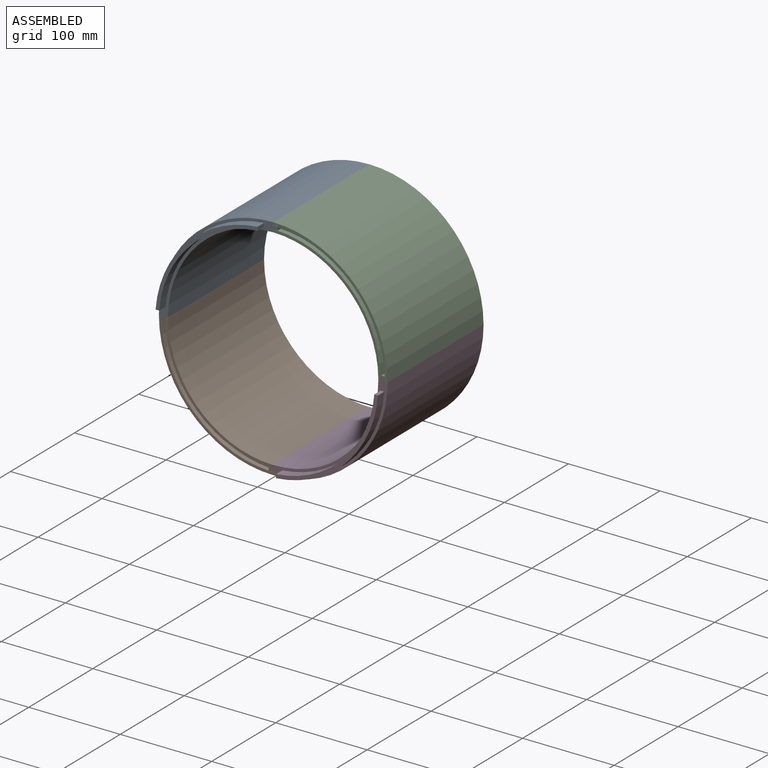
[diagram: assembled view]
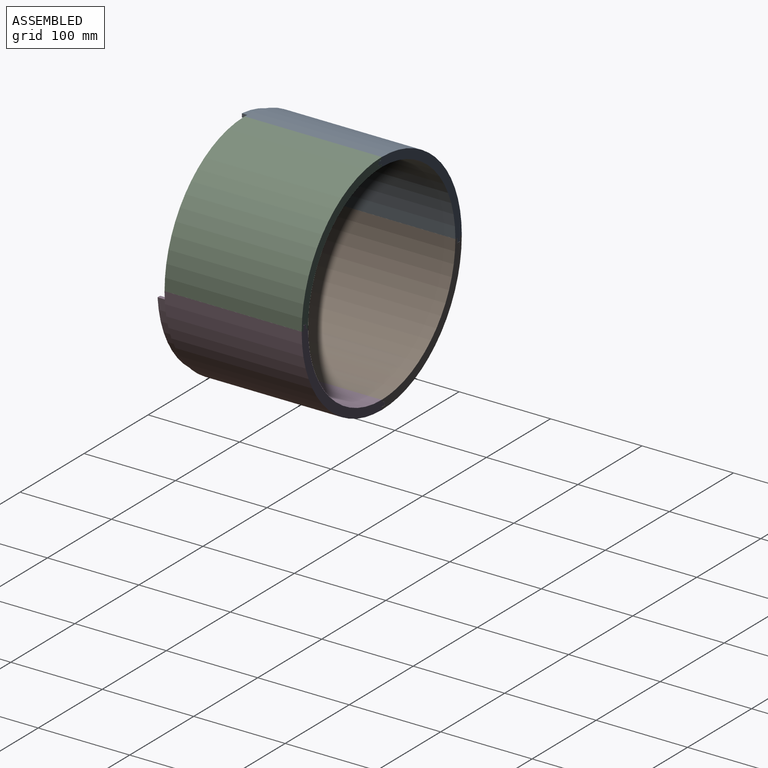
[diagram: assembled view, second angle]
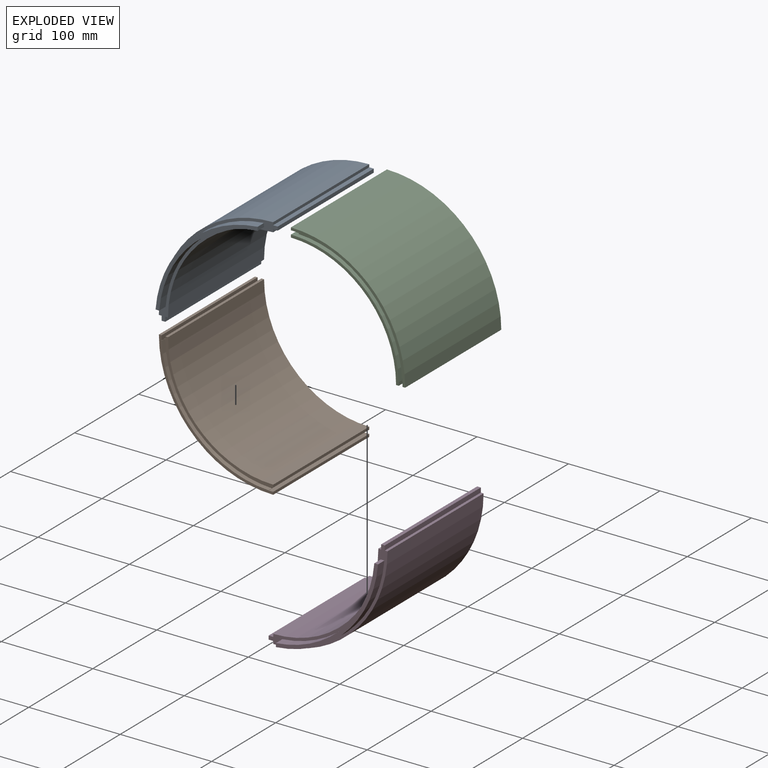
[diagram: exploded view]
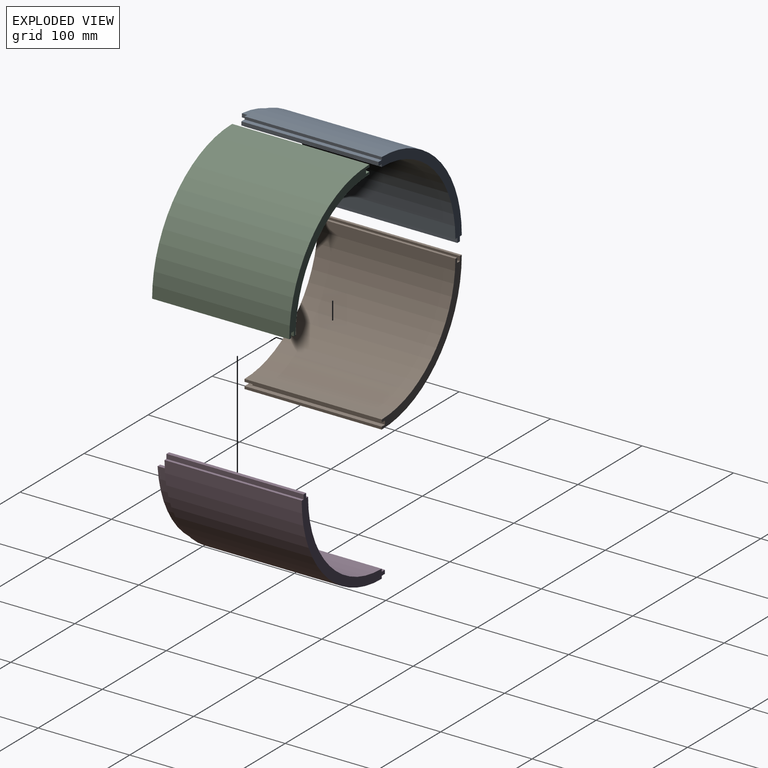
[diagram: exploded view, second angle]
ASSEMBLY  parts=4 mates=3
PART A: 19 faces, bbox 130x160x130 mm
  f0: plane 130x130mm, normal (0,-1,0), area 1251.1mm2, adj f1,f2,f3,f4,f5,f6,f7,f8
  f1: plane 150x3mm, normal (-1,0,0), area 450mm2, adj f0,f2,f12,f13
  f2: plane 150x5mm, normal (0,0,1), area 750mm2, adj f0,f1,f3,f13
  f3: plane 150x4mm, normal (-1,0,0), area 600mm2, adj f0,f2,f4,f13
  f4: plane 150x5mm, normal (0,0,-1), area 750mm2, adj f0,f3,f5,f13
  f5: plane 150x3mm, normal (-1,0,0), area 450mm2, adj f0,f4,f6,f13
  f6: cylinder r=115mm len=150mm, axis (0,1,0), area 27096.2mm2, adj f0,f5,f7,f13
  f7: plane 150x3mm, normal (0,0,-1), area 450mm2, adj f0,f6,f8,f13
  f8: plane 150x5mm, normal (-1,0,0), area 750mm2, adj f0,f7,f9,f13
  f9: plane 150x4mm, normal (0,0,-1), area 600mm2, adj f0,f8,f10,f13
  f10: plane 150x5mm, normal (1,0,0), area 750mm2, adj f0,f9,f11,f13
  f11: plane 150x3mm, normal (0,0,-1), area 450mm2, adj f0,f10,f12,f13
  f12: cylinder r=125mm len=150mm, axis (0,1,0), area 29452.4mm2, adj f0,f1,f11,f13
  f13: plane 130x130mm, normal (0,1,0), area 1925mm2, adj f1,f2,f3,f4,f5,f6,f7,f8
  f14: cylinder r=118mm len=107.58mm, axis (0,1,0), area 1653.3mm2, adj f0,f15,f17,f18
  f15: plane 10x4.01mm, normal (0,0,-1), area 40.1mm2, adj f0,f14,f16,f18
  f16: cylinder r=122mm len=111.59mm, axis (0,1,0), area 1716.1mm2, adj f0,f15,f17,f18
  f17: plane 10x4.01mm, normal (-1,0,0), area 40.1mm2, adj f0,f14,f16,f18
  f18: plane 111.59x111.59mm, normal (0,-1,0), area 673.9mm2, adj f14,f15,f16,f17
PART B: 18 faces, bbox 125x150x125 mm
  f0: plane 150x5.15mm, normal (1,0,0), area 763.7mm2, adj f1,f2,f8,f14,f15,f17
  f1: plane 150x4.2mm, normal (0,0,-1), area 609.2mm2, adj f0,f9,f13,f14,f16,f17
  f2: plane 117.9x117.9mm, normal (0,-1,0), area 539.5mm2, adj f0,f5,f6,f7,f8,f15
  f3: plane 150x5.15mm, normal (0,0,-1), area 772.5mm2, adj f4,f12,f13,f14
  f4: plane 150x4.2mm, normal (-1,0,0), area 609.2mm2, adj f3,f5,f13,f14,f16,f17
  f5: plane 150x5.15mm, normal (0,0,1), area 763.7mm2, adj f2,f4,f6,f14,f15,f17
  f6: plane 150x2.9mm, normal (-1,0,0), area 435mm2, adj f2,f5,f7,f14
  f7: cylinder r=115mm len=150mm, axis (0,1,0), area 27096.2mm2, adj f2,f6,f8,f14
  f8: plane 150x2.9mm, normal (0,0,-1), area 435mm2, adj f0,f2,f7,f14
  f9: plane 150x5.15mm, normal (-1,0,0), area 772.5mm2, adj f1,f10,f13,f14
  f10: plane 150x2.9mm, normal (0,0,-1), area 435mm2, adj f9,f11,f13,f14
  f11: cylinder r=125mm len=150mm, axis (0,1,0), area 29452.4mm2, adj f10,f12,f13,f14
  f12: plane 150x2.9mm, normal (-1,0,0), area 435mm2, adj f3,f11,f13,f14
  f13: plane 125x125mm, normal (0,-1,0), area 571.5mm2, adj f1,f3,f4,f9,f10,f11,f12,f16
  f14: plane 125x125mm, normal (0,1,0), area 1841.7mm2, adj f0,f1,f3,f4,f5,f6,f7,f8
  f15: cylinder r=117.95mm len=114.47mm, axis (0,-1,0), area 918.8mm2, adj f0,f2,f5,f17
  f16: cylinder r=122.05mm len=116.79mm, axis (0,-1,0), area 934.3mm2, adj f1,f4,f13,f17
  f17: plane 118.51x118.51mm, normal (0,-1,0), area 730.7mm2, adj f0,f1,f4,f5,f15,f16
PART C: same geometry as B
PART D: same geometry as A
PLACE A rot(axis=(0,-1,0),90deg) t=(-109.18,59.2,-45.83)mm
PLACE B rot(axis=(0,1,0),180deg) t=(-109.13,59.2,-45.83)mm
PLACE C t=(-109.18,59.2,-45.78)mm fixed
PLACE D rot(axis=(0,1,0),90deg) t=(-109.13,59.2,-45.78)mm
MATE fastened B.f10 <-> A.f1  axis (0,0,1) through (-232.68,-15.8,-45.83)mm
MATE fastened D.f1 <-> C.f10  axis (0,0,1) through (14.37,-15.8,-45.78)mm
MATE fastened A.f7 <-> C.f6  axis (1,0,0) through (-109.18,-15.8,70.67)mm
